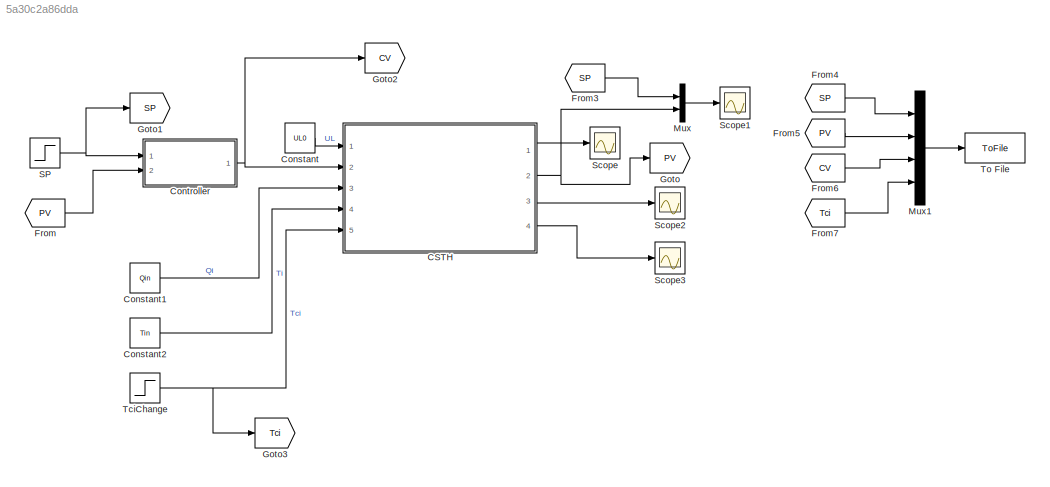
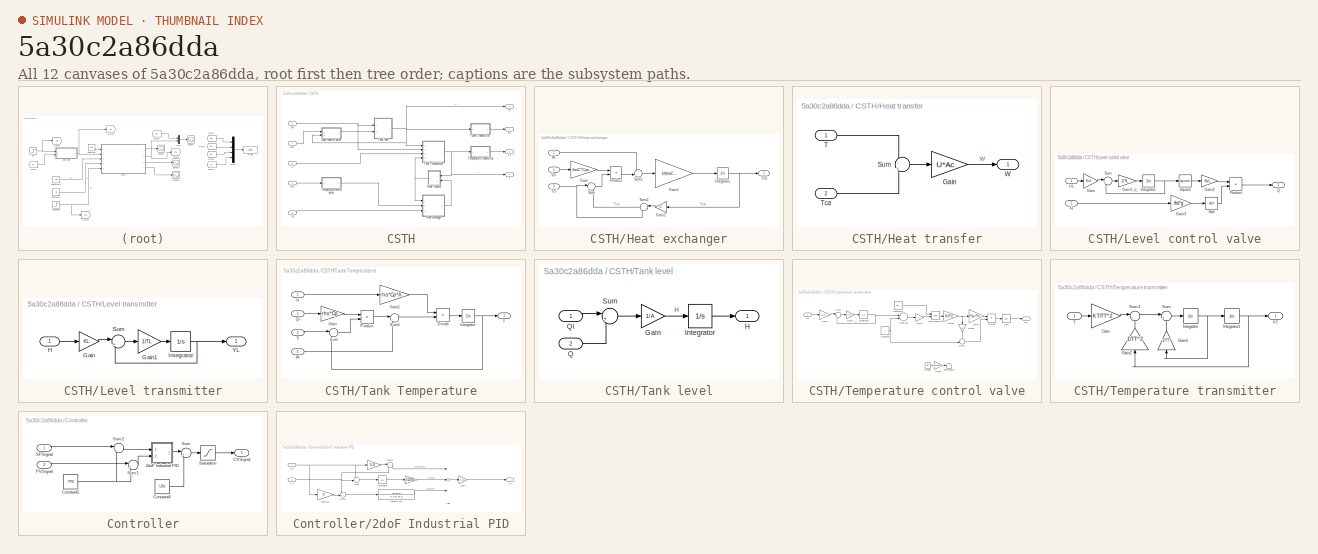
[diagram: thumbnail index - all 12 canvases of the model, root first then tree order]
MODEL slx_5a30c2a86dda
KIND model
CONFIG AbsTol = auto
CONFIG EnableMultiTasking = off
CONFIG FixedStep = 0.01
CONFIG InitFcn = ParamInit
CONFIG MaxStep = auto
CONFIG MinStep = auto
CONFIG RelTol = 1e-3
CONFIG SampleTimeConstraint = Unconstrained
CONFIG Solver = ode5
CONFIG SolverName = ode5
CONFIG StartTime = 0.0
CONFIG StopTime = 1400
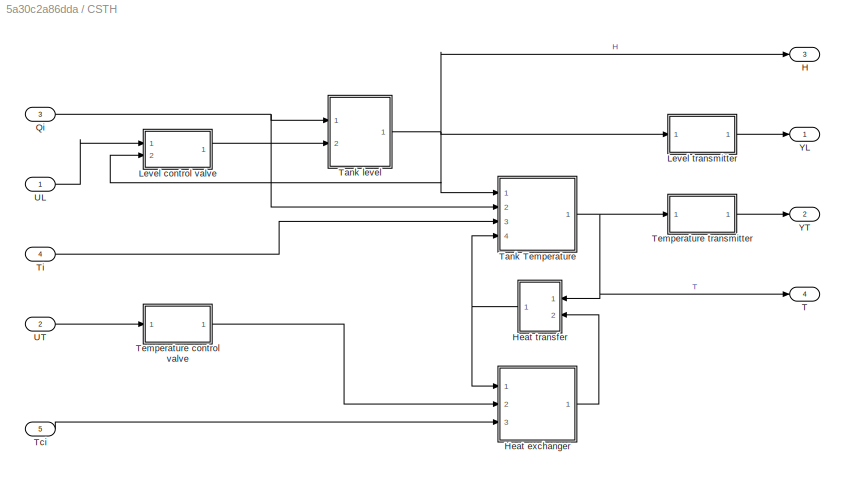
BLOCK [SubSystem] CSTH
  Ports = [5, 4]
  RequestExecContextInheritance = off
BLOCK [Outport] CSTH/H
  IconDisplay = Port number
  Port = 3
BLOCK [SubSystem] CSTH/Heat exchanger
  Ports = [3, 1]
  RequestExecContextInheritance = off
BLOCK [Gain] CSTH/Heat exchanger/Gain
  Gain = rhoC*Cpc
  OutDataTypeStr = Inherit: Inherit via internal rule
  ParamDataTypeStr = Inherit: Inherit via internal rule
  SaturateOnIntegerOverflow = off
BLOCK [Gain] CSTH/Heat exchanger/Gain1
  Gain = 1/(rhoC*Cpc*Vc)
  OutDataTypeStr = Inherit: Inherit via internal rule
  ParamDataTypeStr = Inherit: Inherit via internal rule
  SaturateOnIntegerOverflow = off
BLOCK [Gain] CSTH/Heat exchanger/Gain2
  Gain = 2
  OutDataTypeStr = Inherit: Inherit via internal rule
  ParamDataTypeStr = Inherit: Inherit via internal rule
  SaturateOnIntegerOverflow = off
BLOCK [Integrator] CSTH/Heat exchanger/Integrator
  ContinuousStateAttributes = 'Tca'
  InitialCondition = Tca0
  Ports = [1, 1]
BLOCK [Product] CSTH/Heat exchanger/Product
  InputSameDT = off
  OutDataTypeStr = Inherit: Inherit via internal rule
  Ports = [2, 1]
  RndMeth = Floor
  SaturateOnIntegerOverflow = off
BLOCK [Inport] CSTH/Heat exchanger/Qc
  IconDisplay = Port number
  Port = 2
BLOCK [Sum] CSTH/Heat exchanger/Sum
  IconShape = round
  InputSameDT = off
  Inputs = |+-
  OutDataTypeStr = Inherit: Inherit via internal rule
  Ports = [2, 1]
  SaturateOnIntegerOverflow = off
BLOCK [Sum] CSTH/Heat exchanger/Sum1
  IconShape = round
  InputSameDT = off
  Inputs = -+|
  OutDataTypeStr = Inherit: Inherit via internal rule
  Ports = [2, 1]
  SaturateOnIntegerOverflow = off
BLOCK [Sum] CSTH/Heat exchanger/Sum2
  IconShape = round
  InputSameDT = off
  Inputs = |+-
  OutDataTypeStr = Inherit: Inherit via internal rule
  Ports = [2, 1]
  SaturateOnIntegerOverflow = off
BLOCK [Outport] CSTH/Heat exchanger/Tca
  IconDisplay = Port number
BLOCK [Inport] CSTH/Heat exchanger/Tci
  IconDisplay = Port number
  Port = 3
BLOCK [Inport] CSTH/Heat exchanger/W
  IconDisplay = Port number
BLOCK [SubSystem] CSTH/Heat transfer
  Ports = [2, 1]
  RequestExecContextInheritance = off
BLOCK [Gain] CSTH/Heat transfer/Gain
  Gain = U*Ac
  OutDataTypeStr = Inherit: Inherit via internal rule
  ParamDataTypeStr = Inherit: Inherit via internal rule
  SaturateOnIntegerOverflow = off
BLOCK [Sum] CSTH/Heat transfer/Sum
  IconShape = round
  InputSameDT = off
  Inputs = -|+
  OutDataTypeStr = Inherit: Inherit via internal rule
  Ports = [2, 1]
  SaturateOnIntegerOverflow = off
BLOCK [Inport] CSTH/Heat transfer/T
  IconDisplay = Port number
BLOCK [Inport] CSTH/Heat transfer/Tca
  IconDisplay = Port number
  Port = 2
BLOCK [Outport] CSTH/Heat transfer/W
  IconDisplay = Port number
BLOCK [SubSystem] CSTH/Level control valve
  Ports = [2, 1]
  RequestExecContextInheritance = off
BLOCK [Gain] CSTH/Level control valve/Gain
  Gain = KxL
  OutDataTypeStr = Inherit: Inherit via internal rule
  ParamDataTypeStr = Inherit: Inherit via internal rule
  SaturateOnIntegerOverflow = off
BLOCK [Gain] CSTH/Level control valve/Gain1
  Gain = 1/TL
  OutDataTypeStr = Inherit: Inherit via internal rule
  ParamDataTypeStr = Inherit: Inherit via internal rule
  SaturateOnIntegerOverflow = off
BLOCK [Gain] CSTH/Level control valve/Gain2
  Gain = KvL
  OutDataTypeStr = Inherit: Inherit via internal rule
  ParamDataTypeStr = Inherit: Inherit via internal rule
  SaturateOnIntegerOverflow = off
BLOCK [Gain] CSTH/Level control valve/Gain3
  Gain = rho*g
  OutDataTypeStr = Inherit: Inherit via internal rule
  ParamDataTypeStr = Inherit: Inherit via internal rule
  SaturateOnIntegerOverflow = off
BLOCK [Inport] CSTH/Level control valve/H
  IconDisplay = Port number
  Port = 2
BLOCK [Integrator] CSTH/Level control valve/Integrator
  InitialCondition = XL0
  Ports = [1, 1]
BLOCK [Product] CSTH/Level control valve/Product
  InputSameDT = off
  OutDataTypeStr = Inherit: Inherit via internal rule
  Ports = [2, 1]
  RndMeth = Floor
  SaturateOnIntegerOverflow = off
BLOCK [Outport] CSTH/Level control valve/Q
  IconDisplay = Port number
BLOCK [Sqrt] CSTH/Level control valve/Sqrt
BLOCK [Math] CSTH/Level control valve/Square
  Operator = square
  Ports = [1, 1]
  SignedPower = off
BLOCK [Sum] CSTH/Level control valve/Sum
  IconShape = round
  InputSameDT = off
  Inputs = |+-
  OutDataTypeStr = Inherit: Inherit via internal rule
  Ports = [2, 1]
  SaturateOnIntegerOverflow = off
BLOCK [Inport] CSTH/Level control valve/UL
  IconDisplay = Port number
BLOCK [SubSystem] CSTH/Level transmitter
  Ports = [1, 1]
  RequestExecContextInheritance = off
BLOCK [Gain] CSTH/Level transmitter/Gain
  Gain = KL
  OutDataTypeStr = Inherit: Inherit via internal rule
  ParamDataTypeStr = Inherit: Inherit via internal rule
  SaturateOnIntegerOverflow = off
BLOCK [Gain] CSTH/Level transmitter/Gain1
  Gain = 1/TL
  OutDataTypeStr = Inherit: Inherit via internal rule
  ParamDataTypeStr = Inherit: Inherit via internal rule
  SaturateOnIntegerOverflow = off
BLOCK [Inport] CSTH/Level transmitter/H
  IconDisplay = Port number
BLOCK [Integrator] CSTH/Level transmitter/Integrator
  InitialCondition = YL0
  Ports = [1, 1]
BLOCK [Sum] CSTH/Level transmitter/Sum
  IconShape = round
  InputSameDT = off
  Inputs = |+-
  OutDataTypeStr = Inherit: Inherit via internal rule
  Ports = [2, 1]
  SaturateOnIntegerOverflow = off
BLOCK [Outport] CSTH/Level transmitter/YL
  IconDisplay = Port number
BLOCK [Inport] CSTH/Qi
  IconDisplay = Port number
  Port = 3
BLOCK [Outport] CSTH/T
  IconDisplay = Port number
  Port = 4
BLOCK [SubSystem] CSTH/Tank Temperature
  Ports = [4, 1]
  RequestExecContextInheritance = off
BLOCK [Product] CSTH/Tank Temperature/Divide
  InputSameDT = off
  Inputs = /*
  OutDataTypeStr = Inherit: Inherit via internal rule
  Ports = [2, 1]
  RndMeth = Floor
  SaturateOnIntegerOverflow = off
BLOCK [Gain] CSTH/Tank Temperature/Gain
  Gain = rho*Cp
  OutDataTypeStr = Inherit: Inherit via internal rule
  ParamDataTypeStr = Inherit: Inherit via internal rule
  SaturateOnIntegerOverflow = off
BLOCK [Gain] CSTH/Tank Temperature/Gain1
  Gain = rho*Cp*A
  OutDataTypeStr = Inherit: Inherit via internal rule
  ParamDataTypeStr = Inherit: Inherit via internal rule
  SaturateOnIntegerOverflow = off
BLOCK [Inport] CSTH/Tank Temperature/H
  IconDisplay = Port number
BLOCK [Integrator] CSTH/Tank Temperature/Integrator
  InitialCondition = T0
  Ports = [1, 1]
BLOCK [Product] CSTH/Tank Temperature/Product
  InputSameDT = off
  OutDataTypeStr = Inherit: Inherit via internal rule
  Ports = [2, 1]
  RndMeth = Floor
  SaturateOnIntegerOverflow = off
BLOCK [Inport] CSTH/Tank Temperature/Qi
  IconDisplay = Port number
  Port = 2
BLOCK [Sum] CSTH/Tank Temperature/Sum
  IconShape = round
  InputSameDT = off
  Inputs = |+-
  OutDataTypeStr = Inherit: Inherit via internal rule
  Ports = [2, 1]
  SaturateOnIntegerOverflow = off
BLOCK [Sum] CSTH/Tank Temperature/Sum1
  IconShape = round
  InputSameDT = off
  Inputs = |++
  OutDataTypeStr = Inherit: Inherit via internal rule
  Ports = [2, 1]
  SaturateOnIntegerOverflow = off
BLOCK [Outport] CSTH/Tank Temperature/T
  IconDisplay = Port number
BLOCK [Inport] CSTH/Tank Temperature/Ti
  IconDisplay = Port number
  Port = 3
BLOCK [Inport] CSTH/Tank Temperature/W
  IconDisplay = Port number
  Port = 4
BLOCK [SubSystem] CSTH/Tank level
  Ports = [2, 1]
  RequestExecContextInheritance = off
BLOCK [Gain] CSTH/Tank level/Gain
  Gain = 1/A
  OutDataTypeStr = Inherit: Inherit via internal rule
  ParamDataTypeStr = Inherit: Inherit via internal rule
  SaturateOnIntegerOverflow = off
BLOCK [Outport] CSTH/Tank level/H
  IconDisplay = Port number
BLOCK [Integrator] CSTH/Tank level/Integrator
  InitialCondition = H0
  Ports = [1, 1]
BLOCK [Inport] CSTH/Tank level/Q
  IconDisplay = Port number
  Port = 2
BLOCK [Inport] CSTH/Tank level/Qi
  IconDisplay = Port number
BLOCK [Sum] CSTH/Tank level/Sum
  IconShape = round
  InputSameDT = off
  Inputs = |+-
  OutDataTypeStr = Inherit: Inherit via internal rule
  Ports = [2, 1]
  SaturateOnIntegerOverflow = off
BLOCK [Inport] CSTH/Tci
  IconDisplay = Port number
  Port = 5
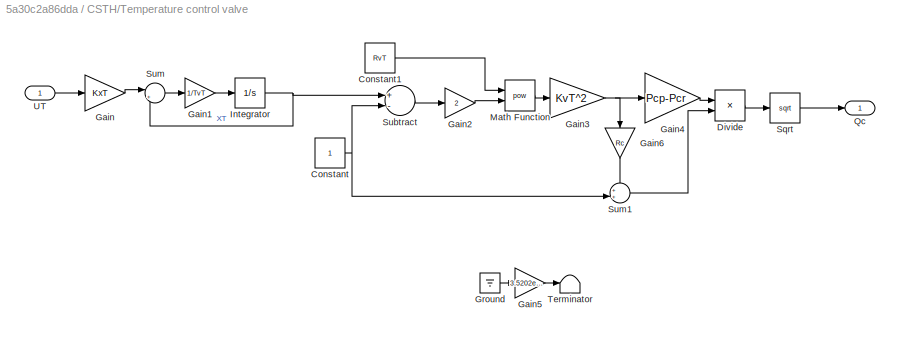
BLOCK [SubSystem] CSTH/Temperature control valve
  Ports = [1, 1]
  RequestExecContextInheritance = off
BLOCK [Constant] CSTH/Temperature control valve/Constant
BLOCK [Constant] CSTH/Temperature control valve/Constant1
  Value = RvT
BLOCK [Product] CSTH/Temperature control valve/Divide
  InputSameDT = off
  Inputs = */
  OutDataTypeStr = Inherit: Inherit via internal rule
  Ports = [2, 1]
  RndMeth = Floor
  SaturateOnIntegerOverflow = off
BLOCK [Gain] CSTH/Temperature control valve/Gain
  Gain = KxT
  OutDataTypeStr = Inherit: Inherit via internal rule
  ParamDataTypeStr = Inherit: Inherit via internal rule
  SaturateOnIntegerOverflow = off
BLOCK [Gain] CSTH/Temperature control valve/Gain1
  Gain = 1/TvT
  OutDataTypeStr = Inherit: Inherit via internal rule
  ParamDataTypeStr = Inherit: Inherit via internal rule
  SaturateOnIntegerOverflow = off
BLOCK [Gain] CSTH/Temperature control valve/Gain2
  Gain = 2
  OutDataTypeStr = Inherit: Inherit via internal rule
  ParamDataTypeStr = Inherit: Inherit via internal rule
  SaturateOnIntegerOverflow = off
BLOCK [Gain] CSTH/Temperature control valve/Gain3
  Gain = KvT^2
  OutDataTypeStr = Inherit: Inherit via internal rule
  ParamDataTypeStr = Inherit: Inherit via internal rule
  SaturateOnIntegerOverflow = off
BLOCK [Gain] CSTH/Temperature control valve/Gain4
  Gain = Pcp-Pcr
  OutDataTypeStr = Inherit: Inherit via internal rule
  ParamDataTypeStr = Inherit: Inherit via internal rule
  SaturateOnIntegerOverflow = off
BLOCK [Gain] CSTH/Temperature control valve/Gain5
  Gain = 3.5202e-4
  OutDataTypeStr = Inherit: Inherit via internal rule
  ParamDataTypeStr = Inherit: Inherit via internal rule
  SaturateOnIntegerOverflow = off
BLOCK [Gain] CSTH/Temperature control valve/Gain6
  Gain = Rc
  OutDataTypeStr = Inherit: Inherit via internal rule
  ParamDataTypeStr = Inherit: Inherit via internal rule
  SaturateOnIntegerOverflow = off
BLOCK [Ground] CSTH/Temperature control valve/Ground
BLOCK [Integrator] CSTH/Temperature control valve/Integrator
  InitialCondition = XT0
  Ports = [1, 1]
BLOCK [Math] CSTH/Temperature control valve/Math Function
  Operator = pow
  Ports = [2, 1]
  SignedPower = off
BLOCK [Outport] CSTH/Temperature control valve/Qc
  IconDisplay = Port number
BLOCK [Sqrt] CSTH/Temperature control valve/Sqrt
BLOCK [Sum] CSTH/Temperature control valve/Subtract
  InputSameDT = off
  Inputs = +-
  OutDataTypeStr = Inherit: Inherit via internal rule
  Ports = [2, 1]
  SaturateOnIntegerOverflow = off
BLOCK [Sum] CSTH/Temperature control valve/Sum
  IconShape = round
  InputSameDT = off
  Inputs = |+-
  OutDataTypeStr = Inherit: Inherit via internal rule
  Ports = [2, 1]
  SaturateOnIntegerOverflow = off
BLOCK [Sum] CSTH/Temperature control valve/Sum1
  IconShape = round
  InputSameDT = off
  Inputs = ++|
  OutDataTypeStr = Inherit: Inherit via internal rule
  Ports = [2, 1]
  SaturateOnIntegerOverflow = off
BLOCK [Terminator] CSTH/Temperature control valve/Terminator
BLOCK [Inport] CSTH/Temperature control valve/UT
  IconDisplay = Port number
BLOCK [SubSystem] CSTH/Temperature transmitter
  Ports = [1, 1]
  RequestExecContextInheritance = off
BLOCK [Gain] CSTH/Temperature transmitter/Gain
  Gain = KT/TT^2
  OutDataTypeStr = Inherit: Inherit via internal rule
  ParamDataTypeStr = Inherit: Inherit via internal rule
  SaturateOnIntegerOverflow = off
BLOCK [Gain] CSTH/Temperature transmitter/Gain1
  Gain = 2/TT
  OutDataTypeStr = Inherit: Inherit via internal rule
  ParamDataTypeStr = Inherit: Inherit via internal rule
  SaturateOnIntegerOverflow = off
BLOCK [Gain] CSTH/Temperature transmitter/Gain2
  Gain = 1/TT^2
  OutDataTypeStr = Inherit: Inherit via internal rule
  ParamDataTypeStr = Inherit: Inherit via internal rule
  SaturateOnIntegerOverflow = off
BLOCK [Integrator] CSTH/Temperature transmitter/Integrator
  Ports = [1, 1]
BLOCK [Integrator] CSTH/Temperature transmitter/Integrator1
  InitialCondition = YT0
  Ports = [1, 1]
BLOCK [Sum] CSTH/Temperature transmitter/Sum
  IconShape = round
  InputSameDT = off
  Inputs = |+-
  OutDataTypeStr = Inherit: Inherit via internal rule
  Ports = [2, 1]
  SaturateOnIntegerOverflow = off
BLOCK [Sum] CSTH/Temperature transmitter/Sum1
  IconShape = round
  InputSameDT = off
  Inputs = |+-
  OutDataTypeStr = Inherit: Inherit via internal rule
  Ports = [2, 1]
  SaturateOnIntegerOverflow = off
BLOCK [Inport] CSTH/Temperature transmitter/T
  IconDisplay = Port number
BLOCK [Outport] CSTH/Temperature transmitter/YT
  IconDisplay = Port number
BLOCK [Inport] CSTH/Ti
  IconDisplay = Port number
  Port = 4
BLOCK [Inport] CSTH/UL
  IconDisplay = Port number
BLOCK [Inport] CSTH/UT
  IconDisplay = Port number
  Port = 2
BLOCK [Outport] CSTH/YL
  IconDisplay = Port number
BLOCK [Outport] CSTH/YT
  IconDisplay = Port number
  Port = 2
BLOCK [Constant] Constant
  Value = UL0
BLOCK [Constant] Constant1
  Value = Qin
BLOCK [Constant] Constant2
  Value = Tin
BLOCK [SubSystem] Controller
  Ports = [2, 1]
  RequestExecContextInheritance = off
BLOCK [SubSystem] Controller/2doF Industrial PID
  Ports = [2, 1]
  RequestExecContextInheritance = off
BLOCK [Gain] Controller/2doF Industrial PID/ 
  Gain = 1/123.85
  OutDataTypeStr = Inherit: Inherit via internal rule
  ParamDataTypeStr = Inherit: Inherit via internal rule
  SaturateOnIntegerOverflow = off
BLOCK [Sum] Controller/2doF Industrial PID/Add
  InputSameDT = off
  Inputs = +++
  OutDataTypeStr = Inherit: Inherit via internal rule
  Ports = [3, 1]
  SaturateOnIntegerOverflow = off
BLOCK [Outport] Controller/2doF Industrial PID/CV
  IconDisplay = Port number
BLOCK [Gain] Controller/2doF Industrial PID/Gain
  Gain = 9.26
  OutDataTypeStr = Inherit: Inherit via internal rule
  ParamDataTypeStr = Inherit: Inherit via internal rule
  SaturateOnIntegerOverflow = off
BLOCK [Integrator] Controller/2doF Industrial PID/Integrator
  Ports = [1, 1]
BLOCK [Inport] Controller/2doF Industrial PID/PV
  IconDisplay = Port number
  Port = 2
BLOCK [Inport] Controller/2doF Industrial PID/SP
  IconDisplay = Port number
BLOCK [Sum] Controller/2doF Industrial PID/Sum
  IconShape = round
  InputSameDT = off
  Inputs = +-|
  OutDataTypeStr = Inherit: Inherit via internal rule
  Ports = [2, 1]
  SaturateOnIntegerOverflow = off
BLOCK [Sum] Controller/2doF Industrial PID/Sum1
  IconShape = round
  InputSameDT = off
  Inputs = |+-
  OutDataTypeStr = Inherit: Inherit via internal rule
  Ports = [2, 1]
  SaturateOnIntegerOverflow = off
BLOCK [Sum] Controller/2doF Industrial PID/Sum2
  IconShape = round
  InputSameDT = off
  Inputs = -+|
  OutDataTypeStr = Inherit: Inherit via internal rule
  Ports = [2, 1]
  SaturateOnIntegerOverflow = off
BLOCK [TransferFcn] Controller/2doF Industrial PID/Transfer Fcn
  Denominator = [0.1*26.68 1]
  Numerator = [26.68 0]
BLOCK [Gain] Controller/2doF Industrial PID/gamma
  Gain = 0
  OutDataTypeStr = Inherit: Inherit via internal rule
  ParamDataTypeStr = Inherit: Inherit via internal rule
  SaturateOnIntegerOverflow = off
BLOCK [Outport] Controller/CVSignal
  IconDisplay = Port number
BLOCK [Constant] Controller/Constant4
  Value = UT0
BLOCK [Constant] Controller/Constant5
  Value = YT0
BLOCK [Inport] Controller/PVSignal
  IconDisplay = Port number
  Port = 2
BLOCK [Inport] Controller/SPSignal
  IconDisplay = Port number
BLOCK [Saturate] Controller/Saturation
  InputPortMap = u0
  LowerLimit = 0
  Ports = [1, 1]
  UpperLimit = 100
BLOCK [Sum] Controller/Sum
  IconShape = round
  InputSameDT = off
  Inputs = |++
  OutDataTypeStr = Inherit: Inherit via internal rule
  Ports = [2, 1]
  SaturateOnIntegerOverflow = off
BLOCK [Sum] Controller/Sum1
  IconShape = round
  InputSameDT = off
  Inputs = |+-
  OutDataTypeStr = Inherit: Inherit via internal rule
  Ports = [2, 1]
  SaturateOnIntegerOverflow = off
BLOCK [Sum] Controller/Sum2
  IconShape = round
  InputSameDT = off
  Inputs = |+-
  OutDataTypeStr = Inherit: Inherit via internal rule
  Ports = [2, 1]
  SaturateOnIntegerOverflow = off
BLOCK [From] From
  GotoTag = PV
BLOCK [From] From3
  GotoTag = SP
BLOCK [From] From4
  GotoTag = SP
BLOCK [From] From5
  GotoTag = PV
BLOCK [From] From6
  GotoTag = CV
BLOCK [From] From7
  GotoTag = Tci
BLOCK [Goto] Goto
  GotoTag = PV
BLOCK [Goto] Goto1
  GotoTag = SP
BLOCK [Goto] Goto2
  GotoTag = CV
BLOCK [Goto] Goto3
  GotoTag = Tci
BLOCK [Mux] Mux
  DisplayOption = bar
  Inputs = 2
  Ports = [2, 1]
BLOCK [Mux] Mux1
  DisplayOption = bar
  Ports = [4, 1]
BLOCK [Step] SP
  After = YT0+5
  Before = YT0
  SampleTime = 0
  Time = 100
BLOCK [Scope] Scope
  Floating = off
  NumInputPorts = 1
  Ports = [1]
  ScopeSpecificationString = Simulink.scopes.TimeScopeBlockCfg('CurrentConfiguration', extmgr.ConfigurationSet(extmgr.Configuration('Core','General UI',true),extmgr.Configuration('Core','Source UI',true),extmgr.Configuration('Sources','WiredSimulink',true),extmgr.Configuration('Visuals','Time Domain',true,'SerializedDisplays',{struct('MinYLimReal','87.48801','MaxYLimReal','87.50133','YLabelReal','','MinYLimMag','87.48801','Ma...<+1361ch>
BLOCK [Scope] Scope1
  Floating = off
  NumInputPorts = 1
  Ports = [1]
  ScopeSpecificationString = Simulink.scopes.TimeScopeBlockCfg('CurrentConfiguration', extmgr.ConfigurationSet(extmgr.Configuration('Core','General UI',true),extmgr.Configuration('Core','Source UI',true),extmgr.Configuration('Sources','WiredSimulink',true,'DataLoggingVariableName','ScopeData1'),extmgr.Configuration('Visuals','Time Domain',true,'SerializedDisplays',{struct('MinYLimReal','75.3306','MaxYLimReal','81.98275','YLab...<+1401ch>
BLOCK [Scope] Scope2
  Floating = off
  NumInputPorts = 1
  Ports = [1]
  ScopeSpecificationString = Simulink.scopes.TimeScopeBlockCfg('CurrentConfiguration', extmgr.ConfigurationSet(extmgr.Configuration('Core','General UI',true),extmgr.Configuration('Core','Source UI',true),extmgr.Configuration('Sources','WiredSimulink',true,'DataLoggingVariableName','ScopeData2'),extmgr.Configuration('Visuals','Time Domain',true,'SerializedDisplays',{struct('MinYLimReal','0.6999','MaxYLimReal','0.70001','YLabel...<+1388ch>
BLOCK [Scope] Scope3
  Floating = off
  NumInputPorts = 1
  Ports = [1]
  ScopeSpecificationString = Simulink.scopes.TimeScopeBlockCfg('CurrentConfiguration', extmgr.ConfigurationSet(extmgr.Configuration('Core','General UI',true),extmgr.Configuration('Core','Source UI',true),extmgr.Configuration('Sources','WiredSimulink',true,'DataLoggingVariableName','ScopeData3'),extmgr.Configuration('Visuals','Time Domain',true,'SerializedDisplays',{struct('MinYLimReal','37.65377','MaxYLimReal','41.09223','YLa...<+1425ch>
BLOCK [Step] TciChange
  After = Tci+10
  Before = Tci
  SampleTime = 0
  Time = 700
BLOCK [ToFile] To File
  Filename = CSTHResults
  MatrixName = Responses
  Ports = [1]
  SampleTime = 0.1
  SaveFormat = Timeseries
LINE CSTH/Heat exchanger/Gain1:1 -> CSTH/Heat exchanger/Integrator:1
LINE CSTH/Heat exchanger/Gain2:1 -> CSTH/Heat exchanger/Sum2:1
LINE CSTH/Heat exchanger/Gain:1 -> CSTH/Heat exchanger/Product:1
NET CSTH/Heat exchanger/Integrator:1 -> CSTH/Heat exchanger/Gain2:1, CSTH/Heat exchanger/Tca:1
LINE CSTH/Heat exchanger/Product:1 -> CSTH/Heat exchanger/Sum1:2
LINE CSTH/Heat exchanger/Qc:1 -> CSTH/Heat exchanger/Gain:1
LINE CSTH/Heat exchanger/Sum1:1 -> CSTH/Heat exchanger/Gain1:1
LINE CSTH/Heat exchanger/Sum2:1 -> CSTH/Heat exchanger/Sum:2
LINE CSTH/Heat exchanger/Sum:1 -> CSTH/Heat exchanger/Product:2
NET CSTH/Heat exchanger/Tci:1 -> CSTH/Heat exchanger/Sum2:2, CSTH/Heat exchanger/Sum:1
LINE CSTH/Heat exchanger/W:1 -> CSTH/Heat exchanger/Sum1:1
LINE CSTH/Heat exchanger:1 -> CSTH/Heat transfer:2
LINE CSTH/Heat transfer/Gain:1 -> CSTH/Heat transfer/W:1
LINE CSTH/Heat transfer/Sum:1 -> CSTH/Heat transfer/Gain:1
LINE CSTH/Heat transfer/T:1 -> CSTH/Heat transfer/Sum:1
LINE CSTH/Heat transfer/Tca:1 -> CSTH/Heat transfer/Sum:2
NET CSTH/Heat transfer:1 -> CSTH/Heat exchanger:1, CSTH/Tank Temperature:4
LINE CSTH/Level control valve/Gain1:1 -> CSTH/Level control valve/Integrator:1
LINE CSTH/Level control valve/Gain2:1 -> CSTH/Level control valve/Product:1
LINE CSTH/Level control valve/Gain3:1 -> CSTH/Level control valve/Sqrt:1
LINE CSTH/Level control valve/Gain:1 -> CSTH/Level control valve/Sum:1
LINE CSTH/Level control valve/H:1 -> CSTH/Level control valve/Gain3:1
NET CSTH/Level control valve/Integrator:1 -> CSTH/Level control valve/Square:1, CSTH/Level control valve/Sum:2
LINE CSTH/Level control valve/Product:1 -> CSTH/Level control valve/Q:1
LINE CSTH/Level control valve/Sqrt:1 -> CSTH/Level control valve/Product:2
LINE CSTH/Level control valve/Square:1 -> CSTH/Level control valve/Gain2:1
LINE CSTH/Level control valve/Sum:1 -> CSTH/Level control valve/Gain1:1
LINE CSTH/Level control valve/UL:1 -> CSTH/Level control valve/Gain:1
LINE CSTH/Level control valve:1 -> CSTH/Tank level:2
LINE CSTH/Level transmitter/Gain1:1 -> CSTH/Level transmitter/Integrator:1
LINE CSTH/Level transmitter/Gain:1 -> CSTH/Level transmitter/Sum:1
LINE CSTH/Level transmitter/H:1 -> CSTH/Level transmitter/Gain:1
NET CSTH/Level transmitter/Integrator:1 -> CSTH/Level transmitter/Sum:2, CSTH/Level transmitter/YL:1
LINE CSTH/Level transmitter/Sum:1 -> CSTH/Level transmitter/Gain1:1
LINE CSTH/Level transmitter:1 -> CSTH/YL:1
NET CSTH/Qi:1 -> CSTH/Tank Temperature:2, CSTH/Tank level:1
LINE CSTH/Tank Temperature/Divide:1 -> CSTH/Tank Temperature/Integrator:1
LINE CSTH/Tank Temperature/Gain1:1 -> CSTH/Tank Temperature/Divide:1
LINE CSTH/Tank Temperature/Gain:1 -> CSTH/Tank Temperature/Product:1
LINE CSTH/Tank Temperature/H:1 -> CSTH/Tank Temperature/Gain1:1
NET CSTH/Tank Temperature/Integrator:1 -> CSTH/Tank Temperature/Sum:2, CSTH/Tank Temperature/T:1
LINE CSTH/Tank Temperature/Product:1 -> CSTH/Tank Temperature/Sum1:1
LINE CSTH/Tank Temperature/Qi:1 -> CSTH/Tank Temperature/Gain:1
LINE CSTH/Tank Temperature/Sum1:1 -> CSTH/Tank Temperature/Divide:2
LINE CSTH/Tank Temperature/Sum:1 -> CSTH/Tank Temperature/Product:2
LINE CSTH/Tank Temperature/Ti:1 -> CSTH/Tank Temperature/Sum:1
LINE CSTH/Tank Temperature/W:1 -> CSTH/Tank Temperature/Sum1:2
NET CSTH/Tank Temperature:1 -> CSTH/Heat transfer:1, CSTH/T:1, CSTH/Temperature transmitter:1
LINE CSTH/Tank level/Gain:1 -> CSTH/Tank level/Integrator:1
LINE CSTH/Tank level/Integrator:1 -> CSTH/Tank level/H:1
LINE CSTH/Tank level/Q:1 -> CSTH/Tank level/Sum:2
LINE CSTH/Tank level/Qi:1 -> CSTH/Tank level/Sum:1
LINE CSTH/Tank level/Sum:1 -> CSTH/Tank level/Gain:1
NET CSTH/Tank level:1 -> CSTH/H:1, CSTH/Level control valve:2, CSTH/Level transmitter:1, CSTH/Tank Temperature:1
LINE CSTH/Tci:1 -> CSTH/Heat exchanger:3
LINE CSTH/Temperature control valve/Constant1:1 -> CSTH/Temperature control valve/Math Function:1
NET CSTH/Temperature control valve/Constant:1 -> CSTH/Temperature control valve/Subtract:2, CSTH/Temperature control valve/Sum1:2
LINE CSTH/Temperature control valve/Divide:1 -> CSTH/Temperature control valve/Sqrt:1
LINE CSTH/Temperature control valve/Gain1:1 -> CSTH/Temperature control valve/Integrator:1
LINE CSTH/Temperature control valve/Gain2:1 -> CSTH/Temperature control valve/Math Function:2
NET CSTH/Temperature control valve/Gain3:1 -> CSTH/Temperature control valve/Gain4:1, CSTH/Temperature control valve/Gain6:1
LINE CSTH/Temperature control valve/Gain4:1 -> CSTH/Temperature control valve/Divide:1
LINE CSTH/Temperature control valve/Gain5:1 -> CSTH/Temperature control valve/Terminator:1
LINE CSTH/Temperature control valve/Gain6:1 -> CSTH/Temperature control valve/Sum1:1
LINE CSTH/Temperature control valve/Gain:1 -> CSTH/Temperature control valve/Sum:1
LINE CSTH/Temperature control valve/Ground:1 -> CSTH/Temperature control valve/Gain5:1
NET CSTH/Temperature control valve/Integrator:1 -> CSTH/Temperature control valve/Subtract:1, CSTH/Temperature control valve/Sum:2
LINE CSTH/Temperature control valve/Math Function:1 -> CSTH/Temperature control valve/Gain3:1
LINE CSTH/Temperature control valve/Sqrt:1 -> CSTH/Temperature control valve/Qc:1
LINE CSTH/Temperature control valve/Subtract:1 -> CSTH/Temperature control valve/Gain2:1
LINE CSTH/Temperature control valve/Sum1:1 -> CSTH/Temperature control valve/Divide:2
LINE CSTH/Temperature control valve/Sum:1 -> CSTH/Temperature control valve/Gain1:1
LINE CSTH/Temperature control valve/UT:1 -> CSTH/Temperature control valve/Gain:1
LINE CSTH/Temperature control valve:1 -> CSTH/Heat exchanger:2
LINE CSTH/Temperature transmitter/Gain1:1 -> CSTH/Temperature transmitter/Sum:2
LINE CSTH/Temperature transmitter/Gain2:1 -> CSTH/Temperature transmitter/Sum1:2
LINE CSTH/Temperature transmitter/Gain:1 -> CSTH/Temperature transmitter/Sum1:1
NET CSTH/Temperature transmitter/Integrator1:1 -> CSTH/Temperature transmitter/Gain2:1, CSTH/Temperature transmitter/YT:1
NET CSTH/Temperature transmitter/Integrator:1 -> CSTH/Temperature transmitter/Gain1:1, CSTH/Temperature transmitter/Integrator1:1
LINE CSTH/Temperature transmitter/Sum1:1 -> CSTH/Temperature transmitter/Sum:1
LINE CSTH/Temperature transmitter/Sum:1 -> CSTH/Temperature transmitter/Integrator:1
LINE CSTH/Temperature transmitter/T:1 -> CSTH/Temperature transmitter/Gain:1
LINE CSTH/Temperature transmitter:1 -> CSTH/YT:1
LINE CSTH/Ti:1 -> CSTH/Tank Temperature:3
LINE CSTH/UL:1 -> CSTH/Level control valve:1
LINE CSTH/UT:1 -> CSTH/Temperature control valve:1
LINE CSTH:1 -> Scope:1
NET CSTH:2 -> Goto:1, Mux:2
LINE CSTH:3 -> Scope2:1
LINE CSTH:4 -> Scope3:1
LINE Constant1:1 -> CSTH:3
LINE Constant2:1 -> CSTH:4
LINE Constant:1 -> CSTH:1
NET Controller/2doF Industrial PID/ :1 -> Controller/2doF Industrial PID/Add:2, Controller/2doF Industrial PID/Sum1:1
LINE Controller/2doF Industrial PID/Add:1 -> Controller/2doF Industrial PID/Gain:1
LINE Controller/2doF Industrial PID/Gain:1 -> Controller/2doF Industrial PID/CV:1
LINE Controller/2doF Industrial PID/Integrator:1 -> Controller/2doF Industrial PID/ :1
NET Controller/2doF Industrial PID/PV:1 -> Controller/2doF Industrial PID/Sum1:2, Controller/2doF Industrial PID/Sum2:1, Controller/2doF Industrial PID/Sum:2
NET Controller/2doF Industrial PID/SP:1 -> Controller/2doF Industrial PID/ :1, Controller/2doF Industrial PID/Sum:1, Controller/2doF Industrial PID/gamma:1
LINE Controller/2doF Industrial PID/Sum1:1 -> Controller/2doF Industrial PID/Add:1
LINE Controller/2doF Industrial PID/Sum2:1 -> Controller/2doF Industrial PID/Transfer Fcn:1
LINE Controller/2doF Industrial PID/Sum:1 -> Controller/2doF Industrial PID/Integrator:1
LINE Controller/2doF Industrial PID/Transfer Fcn:1 -> Controller/2doF Industrial PID/Add:3
LINE Controller/2doF Industrial PID/gamma:1 -> Controller/2doF Industrial PID/Sum2:2
LINE Controller/2doF Industrial PID:1 -> Controller/Sum:1
LINE Controller/Constant4:1 -> Controller/Sum:2
NET Controller/Constant5:1 -> Controller/Sum1:2, Controller/Sum2:2
LINE Controller/PVSignal:1 -> Controller/Sum1:1
LINE Controller/SPSignal:1 -> Controller/Sum2:1
LINE Controller/Saturation:1 -> Controller/CVSignal:1
LINE Controller/Sum1:1 -> Controller/2doF Industrial PID:2
LINE Controller/Sum2:1 -> Controller/2doF Industrial PID:1
LINE Controller/Sum:1 -> Controller/Saturation:1
NET Controller:1 -> CSTH:2, Goto2:1
LINE From3:1 -> Mux:1
LINE From4:1 -> Mux1:1
LINE From5:1 -> Mux1:2
LINE From6:1 -> Mux1:3
LINE From7:1 -> Mux1:4
LINE From:1 -> Controller:2
LINE Mux1:1 -> To File:1
LINE Mux:1 -> Scope1:1
NET SP:1 -> Controller:1, Goto1:1
NET TciChange:1 -> CSTH:5, Goto3:1
note: NET lines group one-source signal fan-out (src -> all destinations, sorted); 1:1 wires keep LINE
